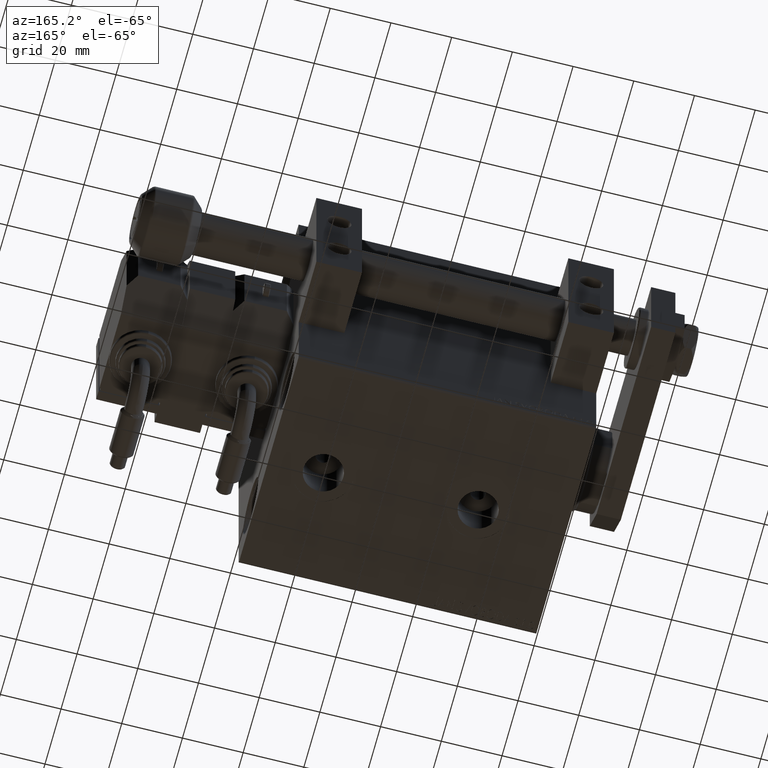
[diagram: clean part render]
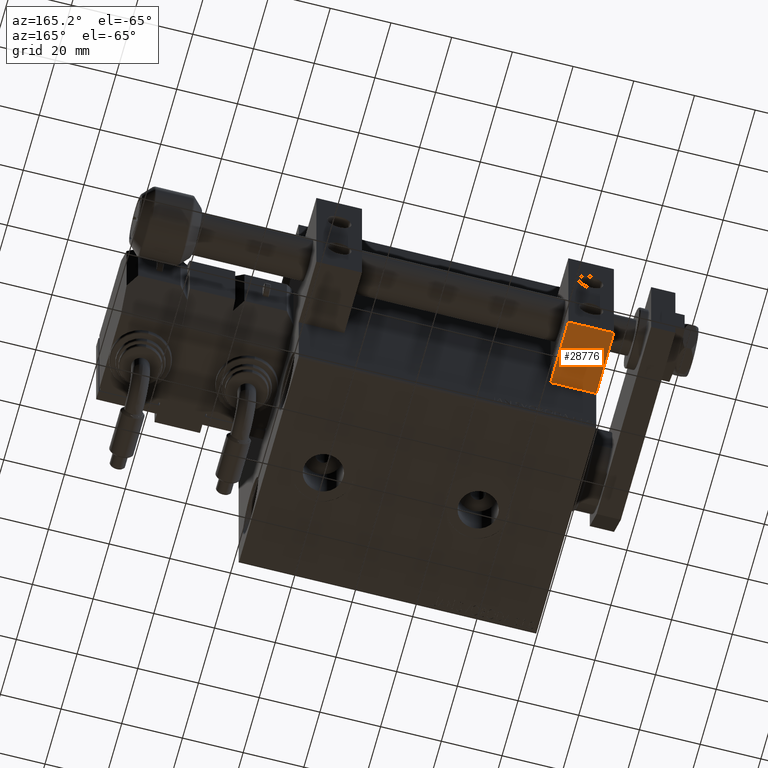
[diagram: same view with one face highlighted and labeled with its STEP entity id]
A machine part, auxiliary view. The second image highlights one B-rep face of the part: STEP entity #28776.
In plain terms, the highlighted planar face has unit normal (0, 0, -1).
Its self-contained STEP definition (entity closure, byte-faithful):
#791 = VECTOR ( 'NONE', #18815, 1000.000000000000000 ) ;
#864 = EDGE_LOOP ( 'NONE', ( #51959, #5522, #1212, #2972 ) ) ;
#1212 = ORIENTED_EDGE ( 'NONE', *, *, #8823, .T. ) ;
#1246 = LINE ( 'NONE', #42158, #40872 ) ;
#2972 = ORIENTED_EDGE ( 'NONE', *, *, #38314, .T. ) ;
#3677 = DIRECTION ( 'NONE',  ( 0.000000000000000000, 1.000000000000000000, 3.154042683594194627E-16 ) ) ;
#4378 = CARTESIAN_POINT ( 'NONE',  ( 15.00000000000000000, 11.00000000000000355, -23.99999999999999289 ) ) ;
#5522 = ORIENTED_EDGE ( 'NONE', *, *, #51362, .F. ) ;
#6641 = DIRECTION ( 'NONE',  ( 0.000000000000000000, 3.154042683594194627E-16, -1.000000000000000000 ) ) ;
#7463 = AXIS2_PLACEMENT_3D ( 'NONE', #23871, #6641, #3677 ) ;
#7493 = VERTEX_POINT ( 'NONE', #50854 ) ;
#8740 = CARTESIAN_POINT ( 'NONE',  ( 0.000000000000000000, 11.00000000000000355, -23.99999999999999289 ) ) ;
#8823 = EDGE_CURVE ( 'NONE', #26853, #26522, #1246, .T. ) ;
#9115 = EDGE_CURVE ( 'NONE', #32038, #7493, #49526, .T. ) ;
#9153 = DIRECTION ( 'NONE',  ( 0.000000000000000000, -1.000000000000000000, -3.154042683594194627E-16 ) ) ;
#10881 = PLANE ( 'NONE',  #7463 ) ;
#13147 = CARTESIAN_POINT ( 'NONE',  ( 0.000000000000000000, 11.00000000000000355, -23.99999999999999289 ) ) ;
#15240 = LINE ( 'NONE', #27456, #52107 ) ;
#16297 = VECTOR ( 'NONE', #9153, 1000.000000000000000 ) ;
#18317 = CARTESIAN_POINT ( 'NONE',  ( 15.00000000000000000, -11.00000000000000000, -24.00000000000000000 ) ) ;
#18815 = DIRECTION ( 'NONE',  ( -1.000000000000000000, -0.000000000000000000, -0.000000000000000000 ) ) ;
#21706 = DIRECTION ( 'NONE',  ( 0.000000000000000000, -1.000000000000000000, -3.154042683594194627E-16 ) ) ;
#23871 = CARTESIAN_POINT ( 'NONE',  ( 15.00000000000000000, 11.00000000000000355, -23.99999999999999289 ) ) ;
#26522 = VERTEX_POINT ( 'NONE', #18317 ) ;
#26853 = VERTEX_POINT ( 'NONE', #4378 ) ;
#27456 = CARTESIAN_POINT ( 'NONE',  ( 15.00000000000000000, 11.00000000000000355, -23.99999999999999289 ) ) ;
#28776 = ADVANCED_FACE ( 'NONE', ( #40067 ), #10881, .T. ) ;
#31437 = DIRECTION ( 'NONE',  ( -1.000000000000000000, -0.000000000000000000, -0.000000000000000000 ) ) ;
#32038 = VERTEX_POINT ( 'NONE', #8740 ) ;
#38314 = EDGE_CURVE ( 'NONE', #26522, #7493, #49448, .T. ) ;
#40067 = FACE_OUTER_BOUND ( 'NONE', #864, .T. ) ;
#40872 = VECTOR ( 'NONE', #21706, 1000.000000000000000 ) ;
#42158 = CARTESIAN_POINT ( 'NONE',  ( 15.00000000000000000, 11.00000000000000355, -23.99999999999999289 ) ) ;
#49448 = LINE ( 'NONE', #50965, #791 ) ;
#49526 = LINE ( 'NONE', #13147, #16297 ) ;
#50854 = CARTESIAN_POINT ( 'NONE',  ( 0.000000000000000000, -11.00000000000000000, -24.00000000000000000 ) ) ;
#50965 = CARTESIAN_POINT ( 'NONE',  ( 15.00000000000000000, -11.00000000000000000, -24.00000000000000000 ) ) ;
#51362 = EDGE_CURVE ( 'NONE', #26853, #32038, #15240, .T. ) ;
#51959 = ORIENTED_EDGE ( 'NONE', *, *, #9115, .F. ) ;
#52107 = VECTOR ( 'NONE', #31437, 1000.000000000000000 ) ;